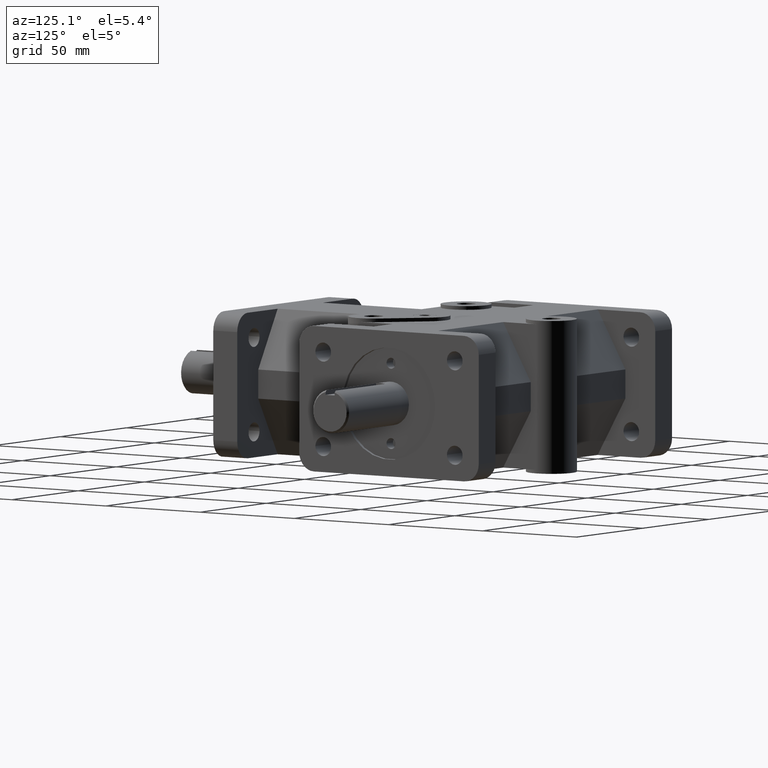
[diagram: clean part render]
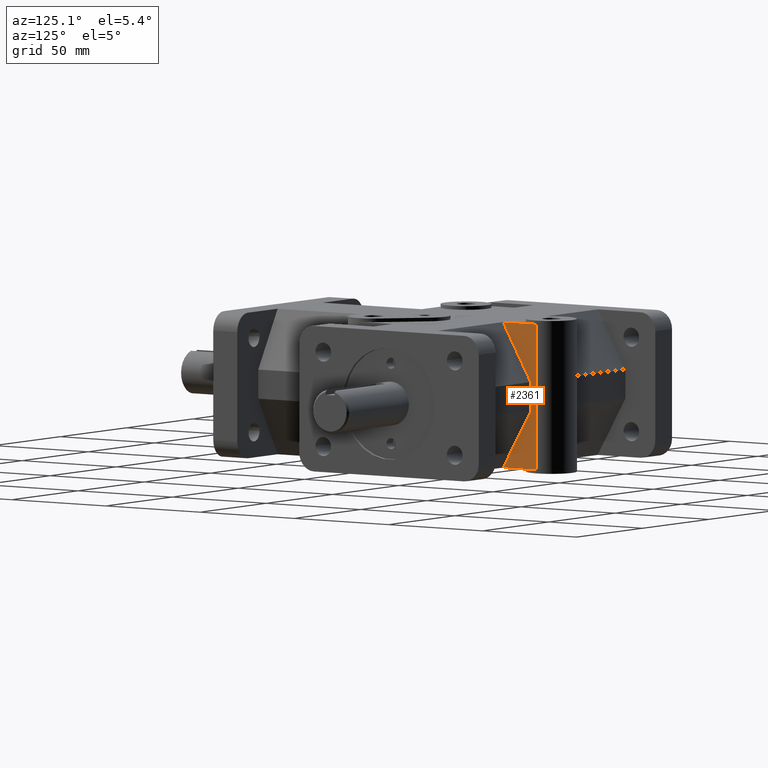
[diagram: same view with one face highlighted and labeled with its STEP entity id]
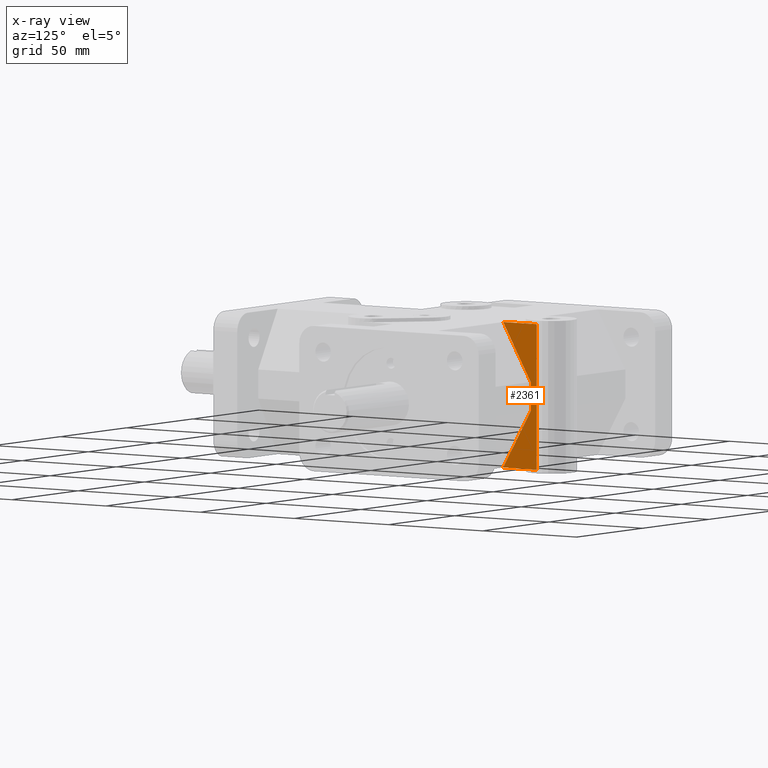
[diagram: x-ray of the same camera — body ghosted, the highlighted face saturated]
A machine part, auxiliary view. The second image highlights one B-rep face of the part: STEP entity #2361.
The next image is the same camera in x-ray: the body ghosted, the highlighted face saturated — about 0% of this face is hidden behind the body in this view.
In plain terms, the highlighted planar face has unit normal (1, 0, 0).
Its self-contained STEP definition (entity closure, byte-faithful):
#89=LINE('',#3583,#311);
#92=LINE('',#3589,#314);
#207=LINE('',#3941,#429);
#209=LINE('',#3945,#431);
#217=LINE('',#3960,#439);
#218=LINE('',#3961,#440);
#311=VECTOR('',#2865,1.);
#314=VECTOR('',#2870,1.);
#429=VECTOR('',#3209,1.);
#431=VECTOR('',#3213,1.);
#439=VECTOR('',#3227,1.);
#440=VECTOR('',#3228,1.);
#649=FACE_OUTER_BOUND('',#806,.T.);
#806=EDGE_LOOP('',(#1998,#1999,#2000,#2001,#2002,#2003));
#1064=VERTEX_POINT('',#3580);
#1065=VERTEX_POINT('',#3582);
#1066=VERTEX_POINT('',#3586);
#1067=VERTEX_POINT('',#3588);
#1174=VERTEX_POINT('',#3940);
#1175=VERTEX_POINT('',#3944);
#1303=EDGE_CURVE('',#1065,#1064,#89,.T.);
#1306=EDGE_CURVE('',#1067,#1066,#92,.T.);
#1474=EDGE_CURVE('',#1065,#1174,#207,.F.);
#1476=EDGE_CURVE('',#1175,#1066,#209,.F.);
#1484=EDGE_CURVE('',#1067,#1064,#217,.T.);
#1485=EDGE_CURVE('',#1174,#1175,#218,.T.);
#1998=ORIENTED_EDGE('',*,*,#1303,.T.);
#1999=ORIENTED_EDGE('',*,*,#1484,.F.);
#2000=ORIENTED_EDGE('',*,*,#1306,.T.);
#2001=ORIENTED_EDGE('',*,*,#1476,.F.);
#2002=ORIENTED_EDGE('',*,*,#1485,.F.);
#2003=ORIENTED_EDGE('',*,*,#1474,.F.);
#2240=PLANE('',#2604);
#2361=ADVANCED_FACE('',(#649),#2240,.T.);
#2604=AXIS2_PLACEMENT_3D('',#3959,#3225,#3226);
#2865=DIRECTION('',(0.,1.,0.));
#2870=DIRECTION('',(0.,-1.,0.));
#3209=DIRECTION('',(0.,-0.499999825156179,-0.866025504730542));
#3213=DIRECTION('',(0.,0.499999825156179,-0.866025504730542));
#3225=DIRECTION('center_axis',(1.,0.,0.));
#3226=DIRECTION('ref_axis',(0.,-1.,0.));
#3227=DIRECTION('',(0.,0.,-1.));
#3228=DIRECTION('',(0.,0.,1.));
#3580=CARTESIAN_POINT('',(0.4375,5.75,-1.25));
#3582=CARTESIAN_POINT('',(0.4375,5.04765,-1.25));
#3583=CARTESIAN_POINT('',(0.4375,5.625,-1.25));
#3586=CARTESIAN_POINT('',(0.4375,5.04765,1.25));
#3588=CARTESIAN_POINT('',(0.4375,5.75,1.25));
#3589=CARTESIAN_POINT('',(0.4375,4.44241940443693,1.25));
#3940=CARTESIAN_POINT('',(0.4375,5.625,-0.25));
#3941=CARTESIAN_POINT('',(0.4375,5.53478907511826,-0.406249978144526));
#3944=CARTESIAN_POINT('',(0.4375,5.625,0.25));
#3945=CARTESIAN_POINT('',(0.4375,5.53478907511826,0.406249978144526));
#3959=CARTESIAN_POINT('Origin',(0.4375,5.625,0.));
#3960=CARTESIAN_POINT('',(0.4375,5.75,0.));
#3961=CARTESIAN_POINT('',(0.4375,5.625,0.));